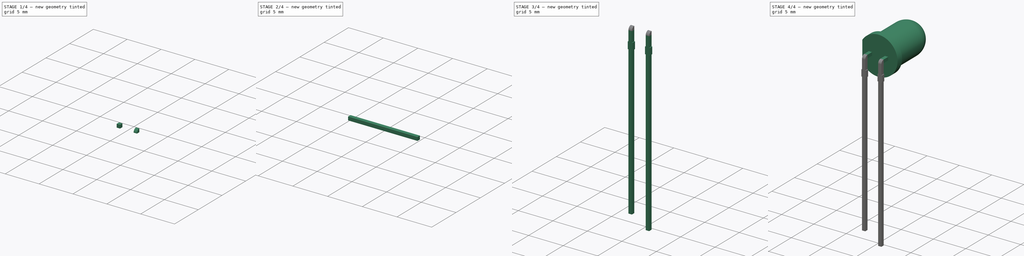
[diagram: build sequence overview — one tinted view per stage of 4, left to right]
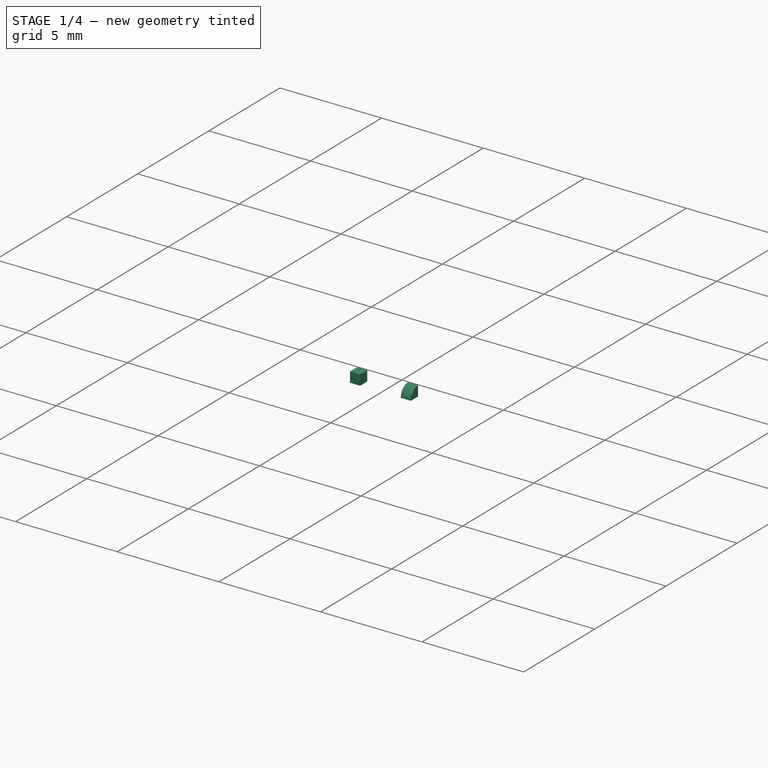
[diagram: stage 1 of 4 — iso view after this stage's code; geometry added in this stage tinted green]
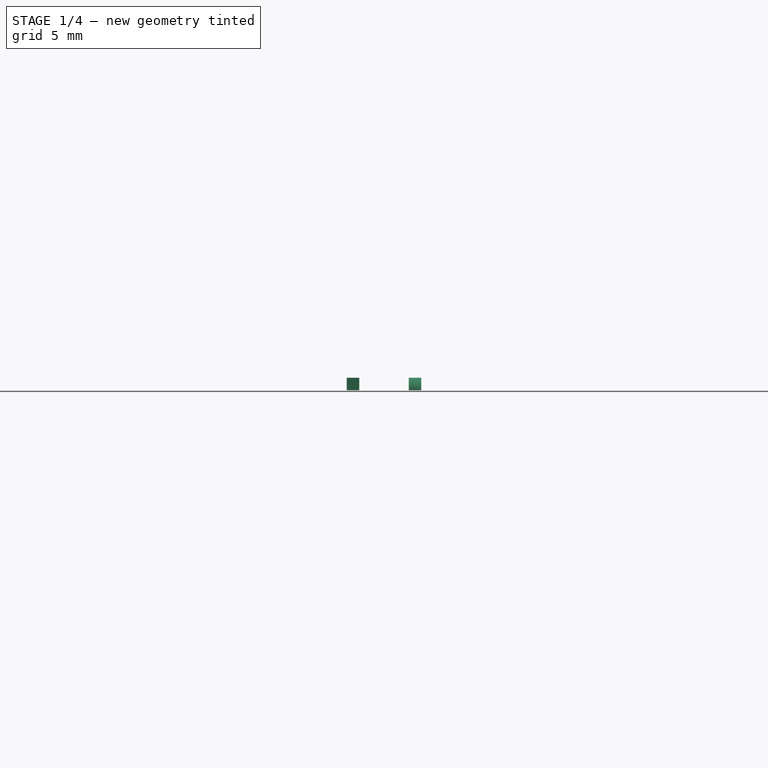
[diagram: stage 1 of 4 — front view after this stage's code; geometry added in this stage tinted green]
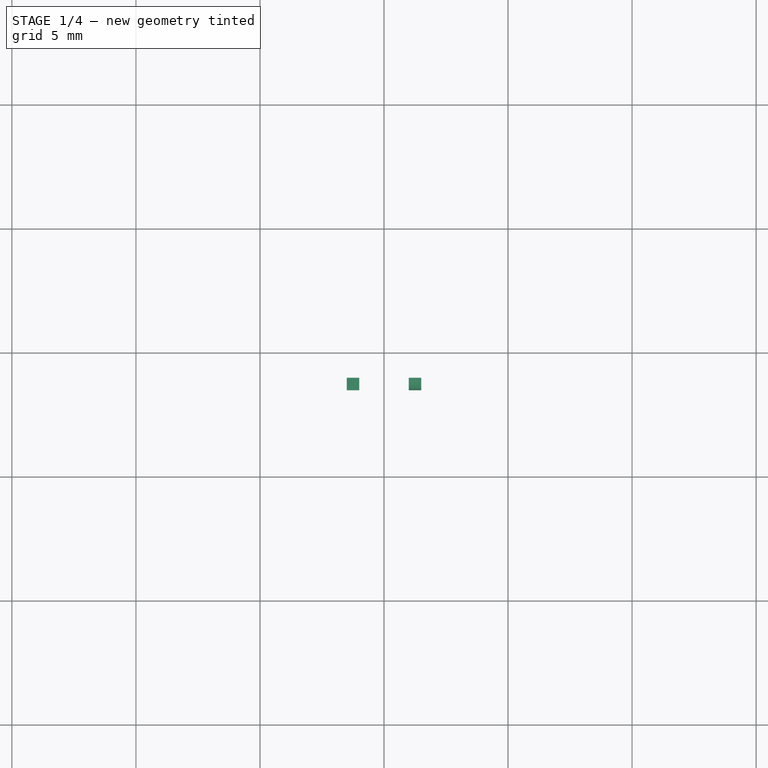
[diagram: stage 1 of 4 — top view after this stage's code; geometry added in this stage tinted green]
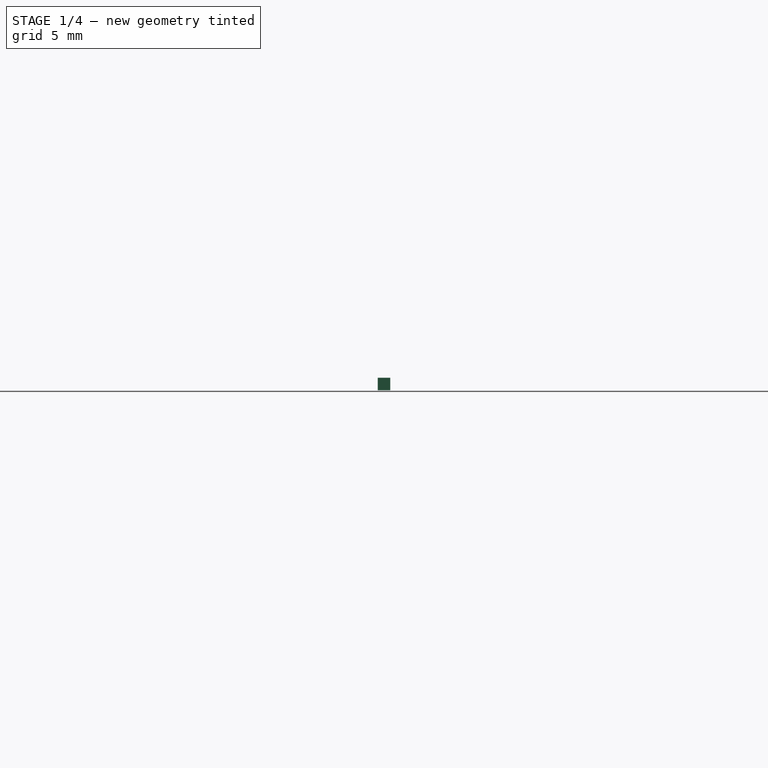
[diagram: stage 1 of 4 — right view after this stage's code; geometry added in this stage tinted green]
FCSTD DOCUMENT  (FreeCAD 0.14R3702 (Git))
Label: led5mm-90deg
License: CC-BY 3.0
LicenseURL: http://creativecommons.org/licenses/by/3.0/
objects: Part::Extrusion×7, Sketcher::SketchObject×5, Part::Feature×3, Part::MultiCommon×3, Part::Cut×2, Part::Compound×2
note: 22 computed .brp shape members not serialized (recipe doc carries the construction recipe); baked Part::Feature solids carry a one-line shape summary decoded from their .brp

FEATURE [Sketcher::SketchObject] Sketch004
  Placement = pos=(-1.5,0,0) rot=(0.57735,0.57735,0.57735;2.0944rad)
  sketch-geometry (4):
    g0: LineSegment StartX=-1.5 StartY=0.25 StartZ=0 EndX=-1 EndY=0.25 EndZ=0
    g1: LineSegment StartX=-1 StartY=0.25 StartZ=0 EndX=-1 EndY=-0.25 EndZ=0
    g2: LineSegment StartX=-1 StartY=-0.25 StartZ=0 EndX=-1.5 EndY=-0.25 EndZ=0
    g3: LineSegment StartX=-1.5 StartY=-0.25 StartZ=0 EndX=-1.5 EndY=0.25 EndZ=0
  constraints (8):
    c: Coincident(g0,g1)
    c: Coincident(g1,g2)
    c: Coincident(g2,g3)
    c: Coincident(g3,g0)
    c: Horizontal(g0)
    c: Horizontal(g2)
    c: Vertical(g1)
    c: Vertical(g3)
FEATURE [Part::Extrusion] Extrude004
  Base = -> Sketch004
  Dir = (0.5,0,0)
  Solid = true
FEATURE [Part::Extrusion] Extrude005
  Base = -> Sketch004
  Dir = (0.5,0,0)
  Solid = true
FEATURE [Part::Extrusion] Extrude006
  Base = -> Sketch003
  Dir = (0.5,0,0)
  Solid = true
FEATURE [Part::MultiCommon] Common002
  Placement = pos=(2.5,0,0) rot=(0,0,1;0rad)
  Shapes = -> [Extrude006,Extrude005]
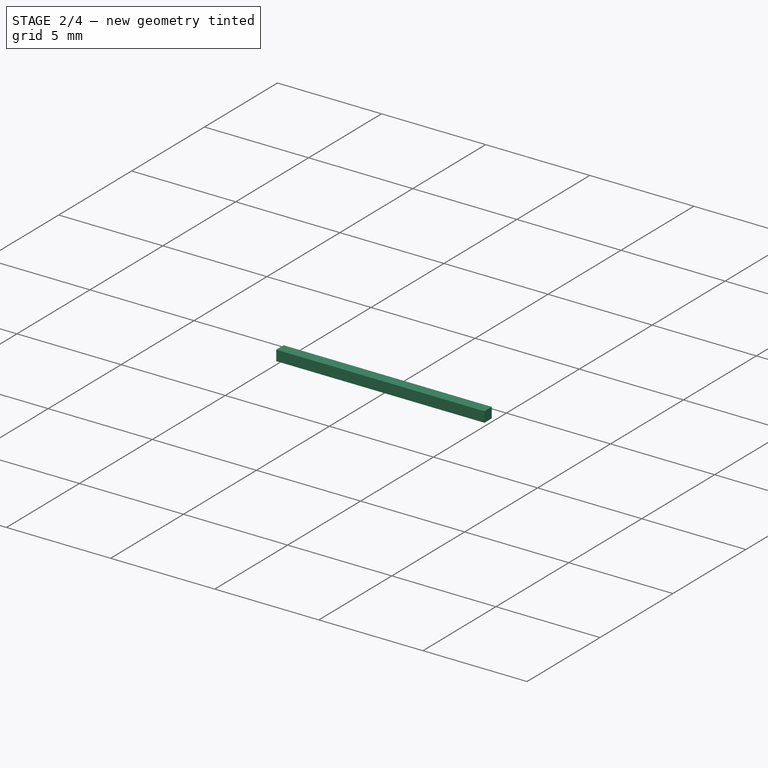
[diagram: stage 2 of 4 — iso view after this stage's code; geometry added in this stage tinted green]
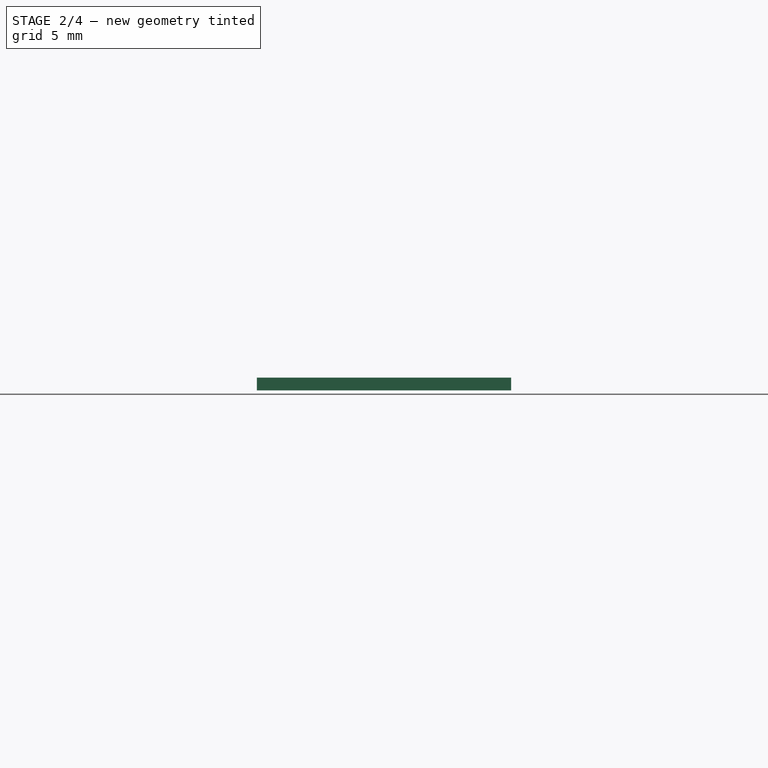
[diagram: stage 2 of 4 — front view after this stage's code; geometry added in this stage tinted green]
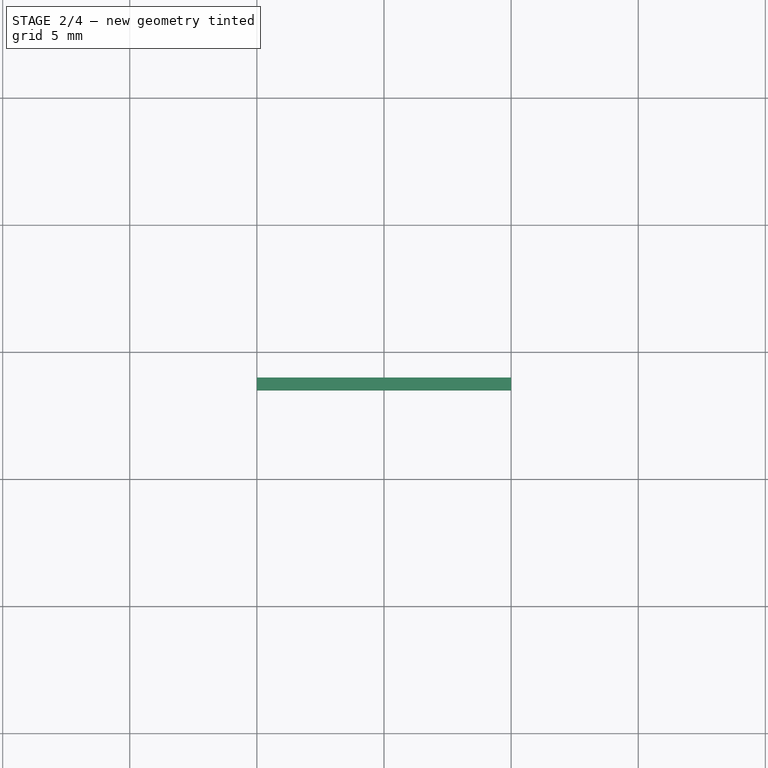
[diagram: stage 2 of 4 — top view after this stage's code; geometry added in this stage tinted green]
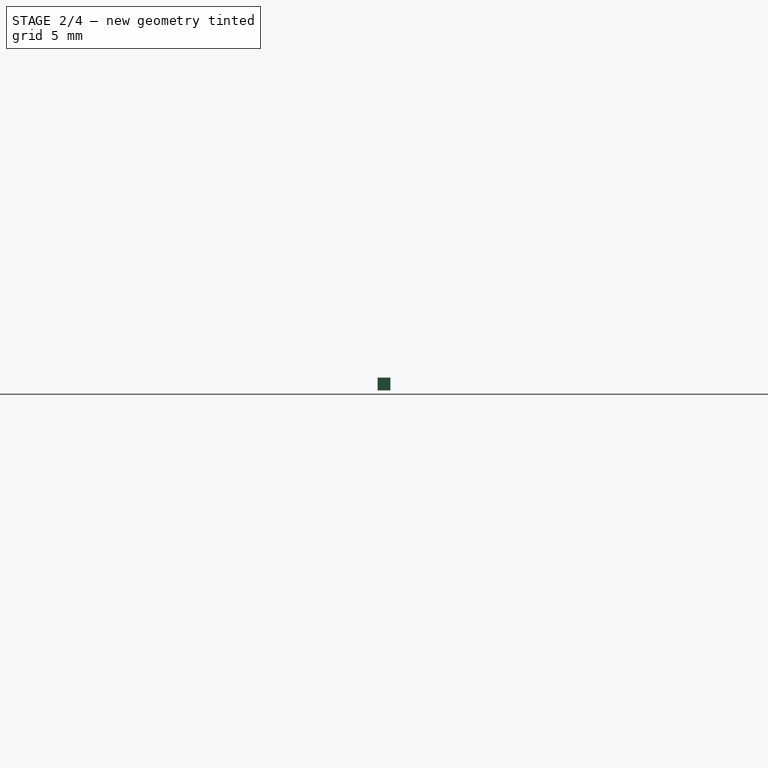
[diagram: stage 2 of 4 — right view after this stage's code; geometry added in this stage tinted green]
FEATURE [Sketcher::SketchObject] Sketch002
  Placement = pos=(-5,0,0) rot=(0.57735,0.57735,0.57735;2.0944rad)
  sketch-geometry (4):
    g0: LineSegment StartX=-1.5 StartY=0.25 StartZ=0 EndX=-1 EndY=0.25 EndZ=0
    g1: LineSegment StartX=-1 StartY=0.25 StartZ=0 EndX=-1 EndY=-0.25 EndZ=0
    g2: LineSegment StartX=-1 StartY=-0.25 StartZ=0 EndX=-1.5 EndY=-0.25 EndZ=0
    g3: LineSegment StartX=-1.5 StartY=-0.25 StartZ=0 EndX=-1.5 EndY=0.25 EndZ=0
  constraints (8):
    c: Coincident(g0,g1)
    c: Coincident(g1,g2)
    c: Coincident(g2,g3)
    c: Coincident(g3,g0)
    c: Horizontal(g0)
    c: Horizontal(g2)
    c: Vertical(g1)
    c: Vertical(g3)
FEATURE [Part::Extrusion] Extrude002
  Base = -> Sketch002
  Dir = (10,0,0)
  Solid = true
FEATURE [Sketcher::SketchObject] Sketch003
  Placement = pos=(-1.5,0,0) rot=(0.57735,0.57735,0.57735;2.0944rad)
  sketch-geometry (1):
    g0: Circle CenterX=-1 CenterY=-0.25 CenterZ=0 NormalX=0 NormalY=0 NormalZ=1 Radius=0.5
FEATURE [Part::Extrusion] Extrude003
  Base = -> Sketch003
  Dir = (0.5,0,0)
  Solid = true
FEATURE [Part::MultiCommon] Common001
  Shapes = -> [Extrude003,Extrude004]
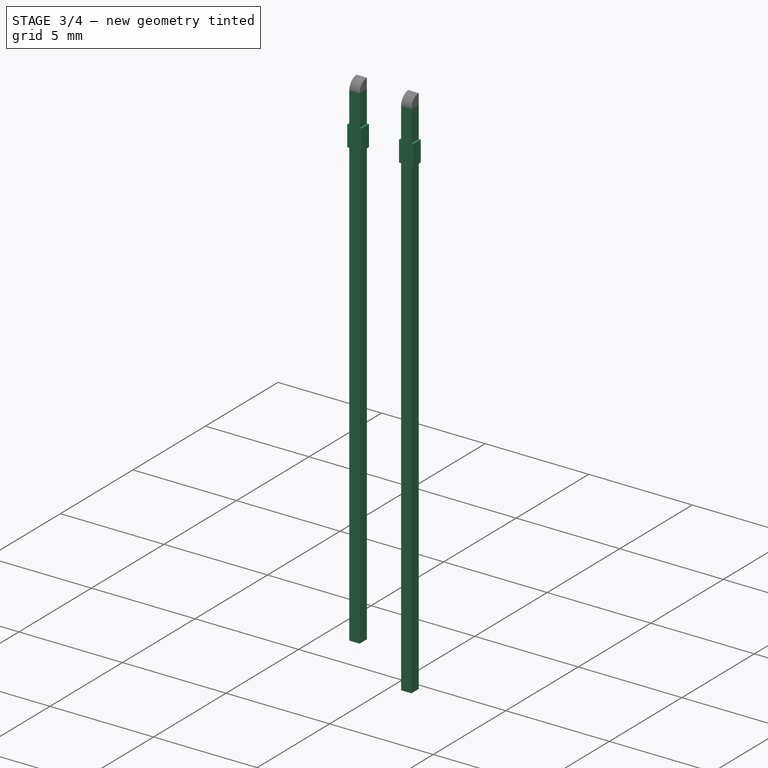
[diagram: stage 3 of 4 — iso view after this stage's code; geometry added in this stage tinted green]
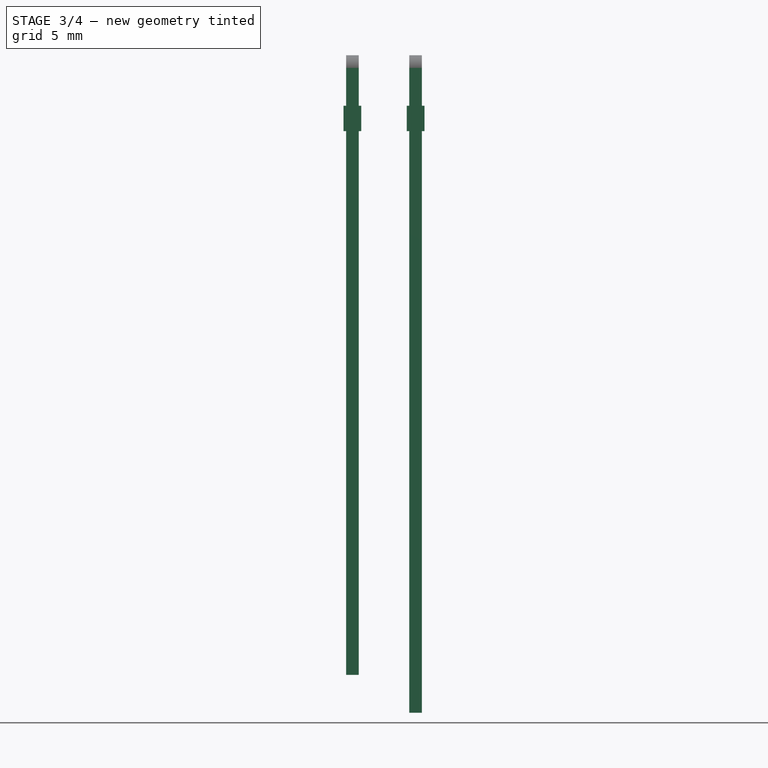
[diagram: stage 3 of 4 — front view after this stage's code; geometry added in this stage tinted green]
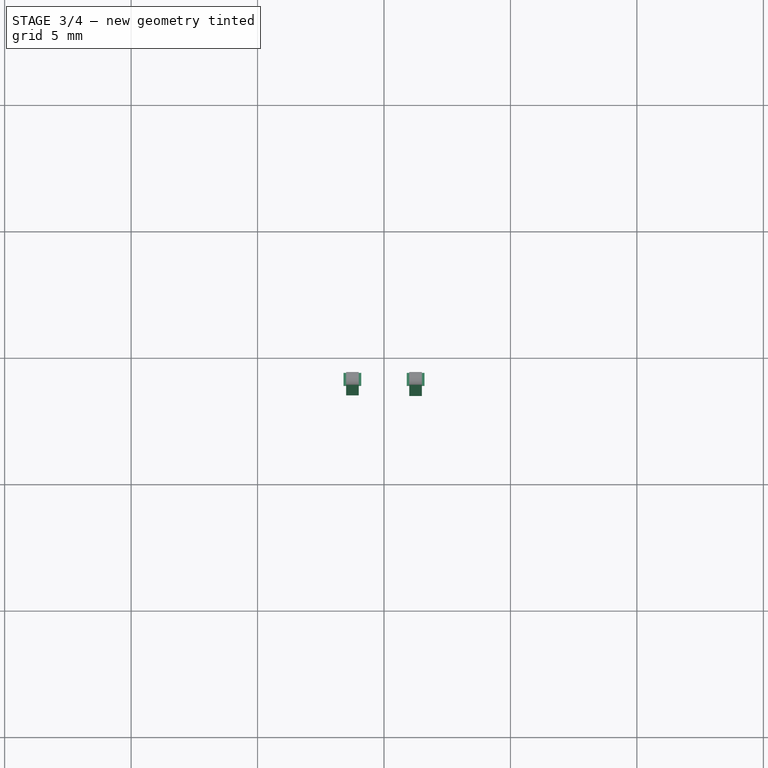
[diagram: stage 3 of 4 — top view after this stage's code; geometry added in this stage tinted green]
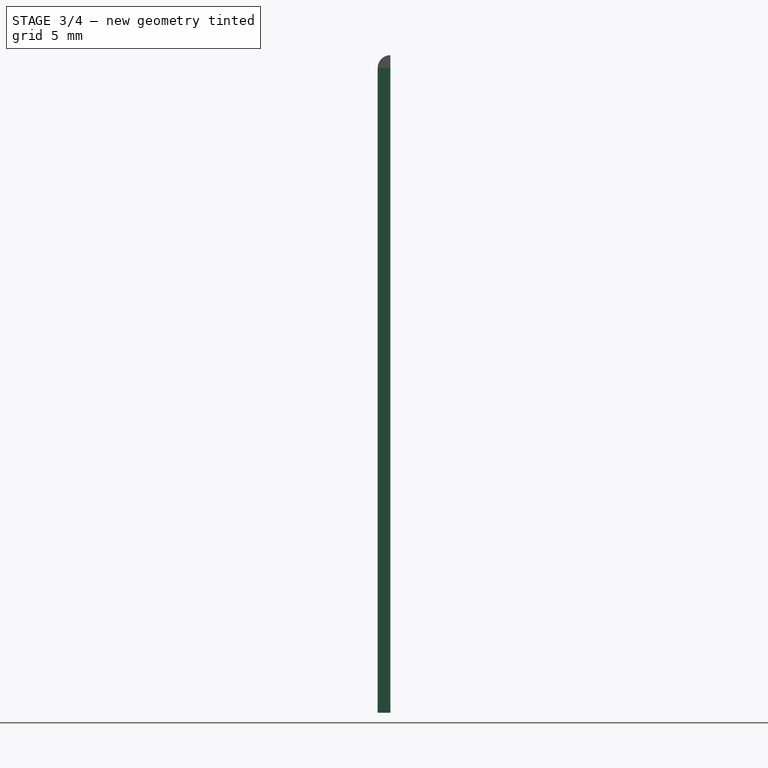
[diagram: stage 3 of 4 — right view after this stage's code; geometry added in this stage tinted green]
FEATURE [Part::Feature] Part__Feature  label="5mm LED"
  shape: bbox 5.45 x 8.6 x 5.9 mm, 8 faces (baked)
FEATURE [Part::Feature] Part__Feature001  label="5mm LED001"
  shape: bbox 4.201 x 31.97 x 2 mm, 57 faces (baked)
FEATURE [Part::Feature] Part__Feature002  label="5mm LED002"
  shape: bbox 4.201 x 31.97 x 2 mm, 57 faces (baked)
FEATURE [Sketcher::SketchObject] Sketch001
  Placement = pos=(-5,0,0) rot=(0.57735,0.57735,0.57735;2.0944rad)
  sketch-geometry (4):
    g0: LineSegment StartX=-1 StartY=1.42607 StartZ=0 EndX=5 EndY=1.42607 EndZ=0
    g1: LineSegment StartX=5 StartY=1.42607 StartZ=0 EndX=5 EndY=-2 EndZ=0
    g2: LineSegment StartX=5 StartY=-2 StartZ=0 EndX=-1 EndY=-2 EndZ=0
    g3: LineSegment StartX=-1 StartY=-2 StartZ=0 EndX=-1 EndY=1.42607 EndZ=0
  constraints (8):
    c: Coincident(g0,g1)
    c: Coincident(g1,g2)
    c: Coincident(g2,g3)
    c: Coincident(g3,g0)
    c: Horizontal(g0)
    c: Horizontal(g2)
    c: Vertical(g1)
    c: Vertical(g3)
FEATURE [Part::Extrusion] Extrude001
  Base = -> Sketch001
  Dir = (10,0,0)
  Solid = true
FEATURE [Part::Cut] Cut
  Base = -> Part__Feature002
  Placement = pos=(0,-1.25,1.25) rot=(1,0,0;1.5708rad)
  Tool = -> Extrude001
FEATURE [Part::Cut] Cut001
  Base = -> Cut
  Tool = -> Extrude002
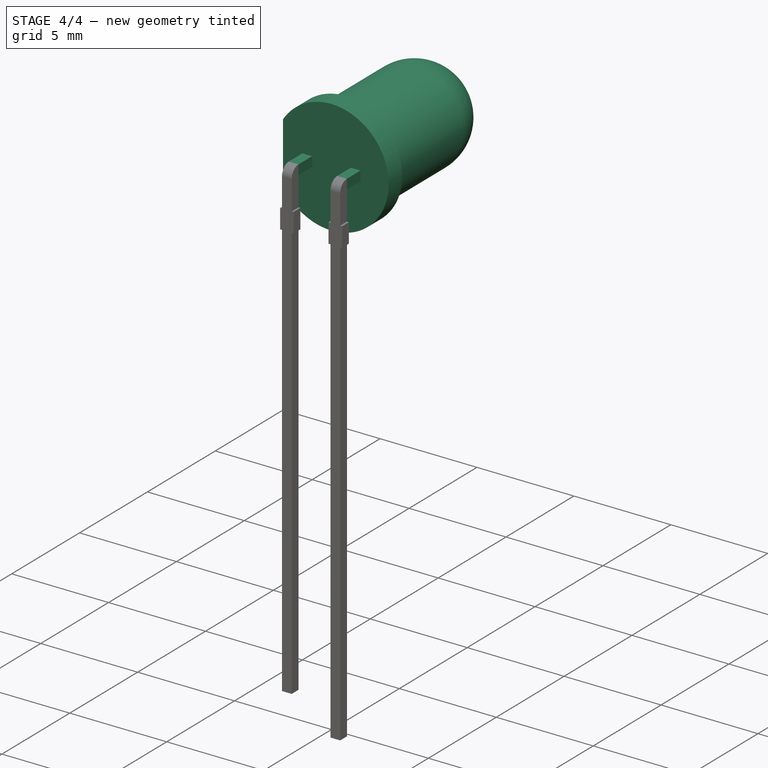
[diagram: stage 4 of 4 — iso view after this stage's code; geometry added in this stage tinted green]
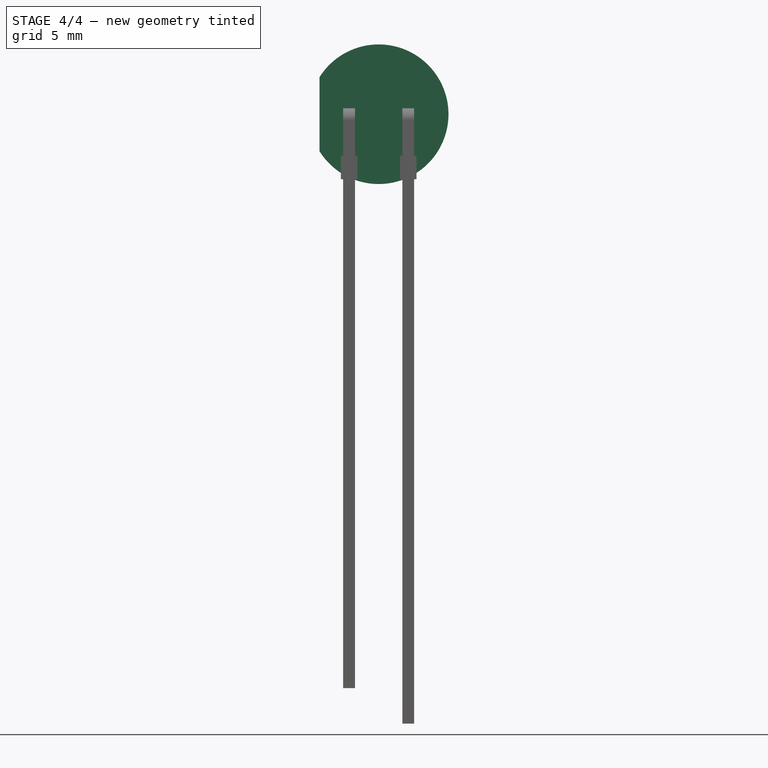
[diagram: stage 4 of 4 — front view after this stage's code; geometry added in this stage tinted green]
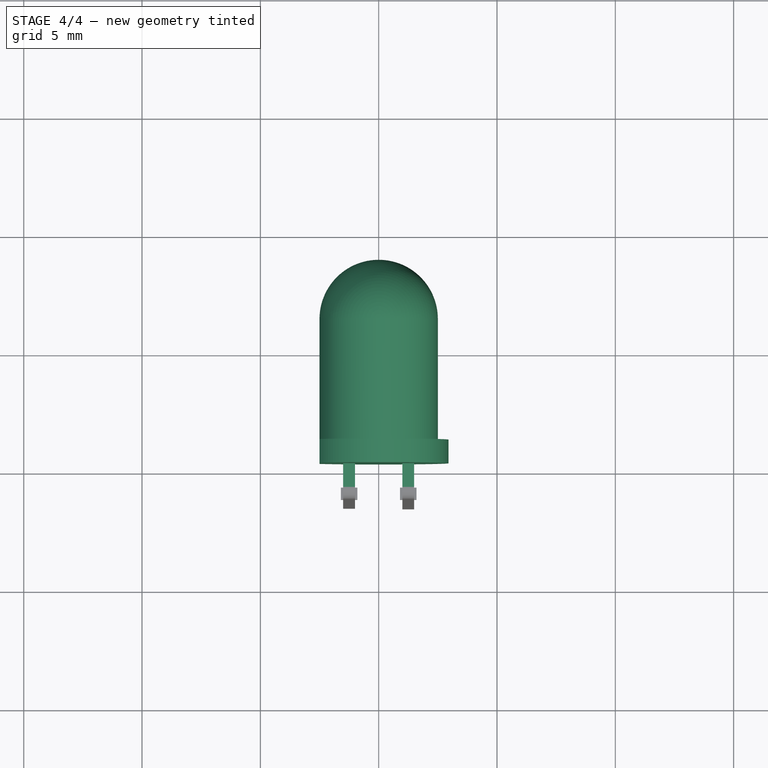
[diagram: stage 4 of 4 — top view after this stage's code; geometry added in this stage tinted green]
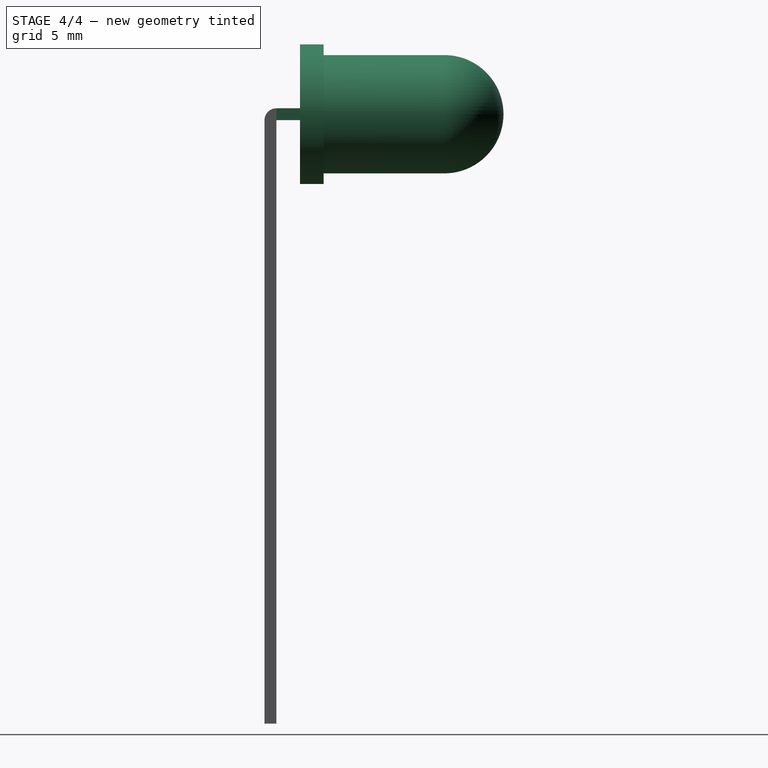
[diagram: stage 4 of 4 — right view after this stage's code; geometry added in this stage tinted green]
FEATURE [Sketcher::SketchObject] Sketch
  Placement = pos=(0,-1,0) rot=(-1,0,0;4.71239rad)
  sketch-geometry (4):
    g0: LineSegment StartX=-10 StartY=10 StartZ=0 EndX=10 EndY=10 EndZ=0
    g1: LineSegment StartX=10 StartY=10 StartZ=0 EndX=10 EndY=-10 EndZ=0
    g2: LineSegment StartX=10 StartY=-10 StartZ=0 EndX=-10 EndY=-10 EndZ=0
    g3: LineSegment StartX=-10 StartY=-10 StartZ=0 EndX=-10 EndY=10 EndZ=0
  constraints (8):
    c: Coincident(g0,g1)
    c: Coincident(g1,g2)
    c: Coincident(g2,g3)
    c: Coincident(g3,g0)
    c: Horizontal(g0)
    c: Horizontal(g2)
    c: Vertical(g1)
    c: Vertical(g3)
FEATURE [Part::Extrusion] Extrude
  Base = -> Sketch
  Dir = (0,10,0)
  Solid = true
FEATURE [Part::MultiCommon] Common
  Shapes = -> [Part__Feature001,Extrude]
FEATURE [Part::Compound] Compound  label="4mm LEADS"
  Links = -> [Common,Cut001,Common001,Common002]
FEATURE [Part::Compound] Compound001  label="led5mm-90deg"
  Links = -> [Part__Feature,Compound]
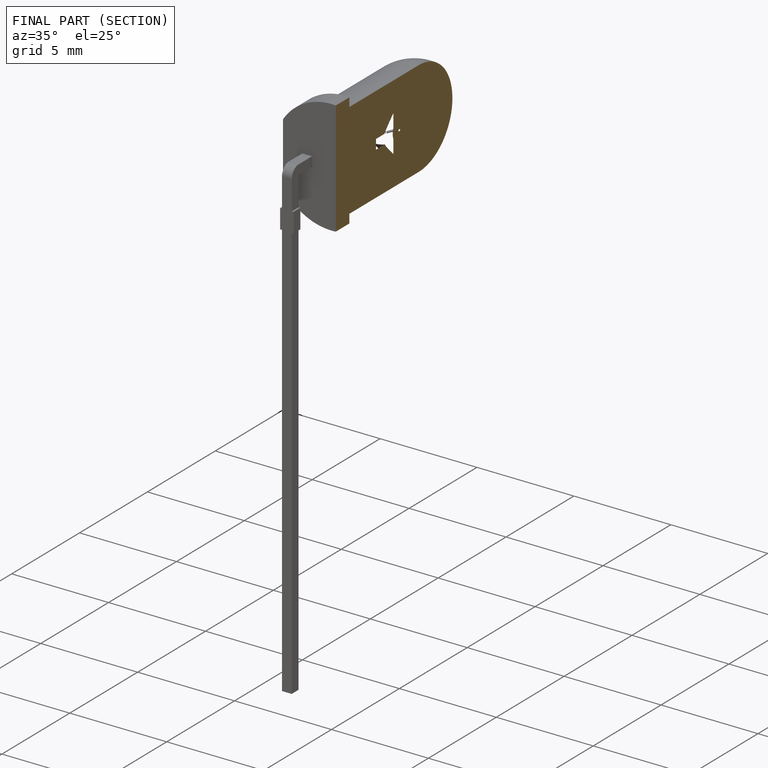
[diagram: finished part — half-section view (interior)]
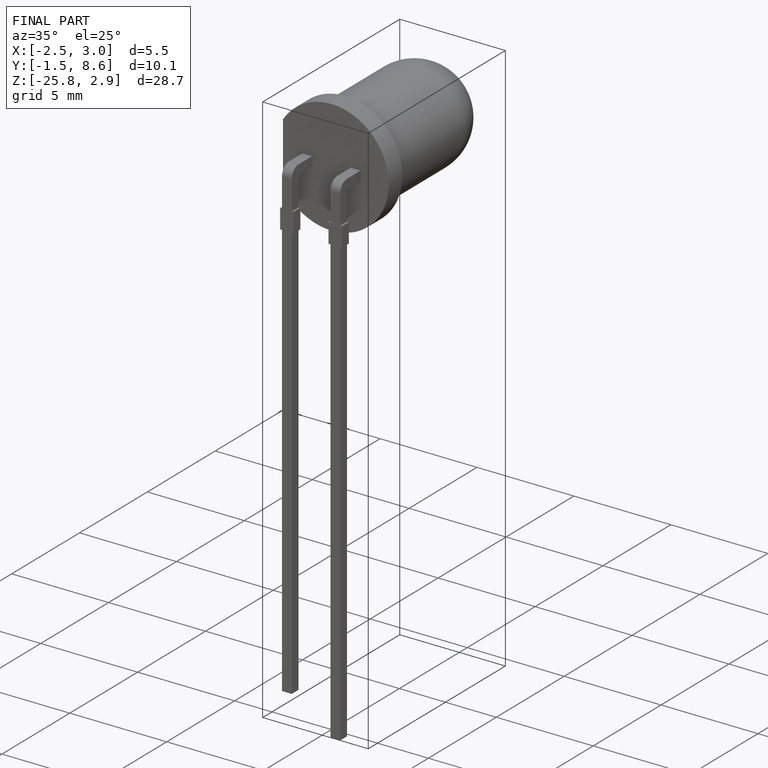
[diagram: finished part — iso view with bounding-box wireframe]
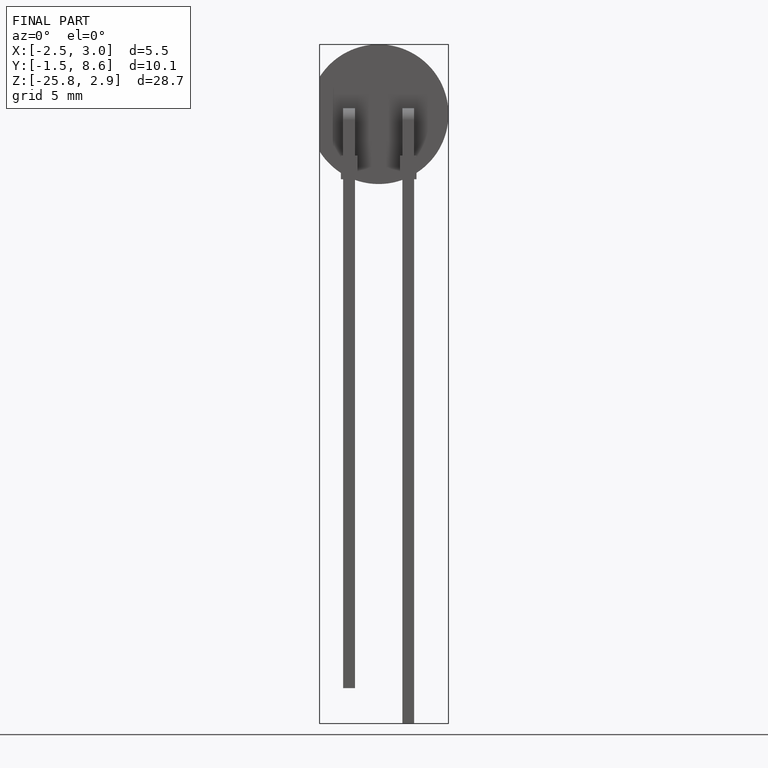
[diagram: finished part — front view with bounding-box wireframe]
